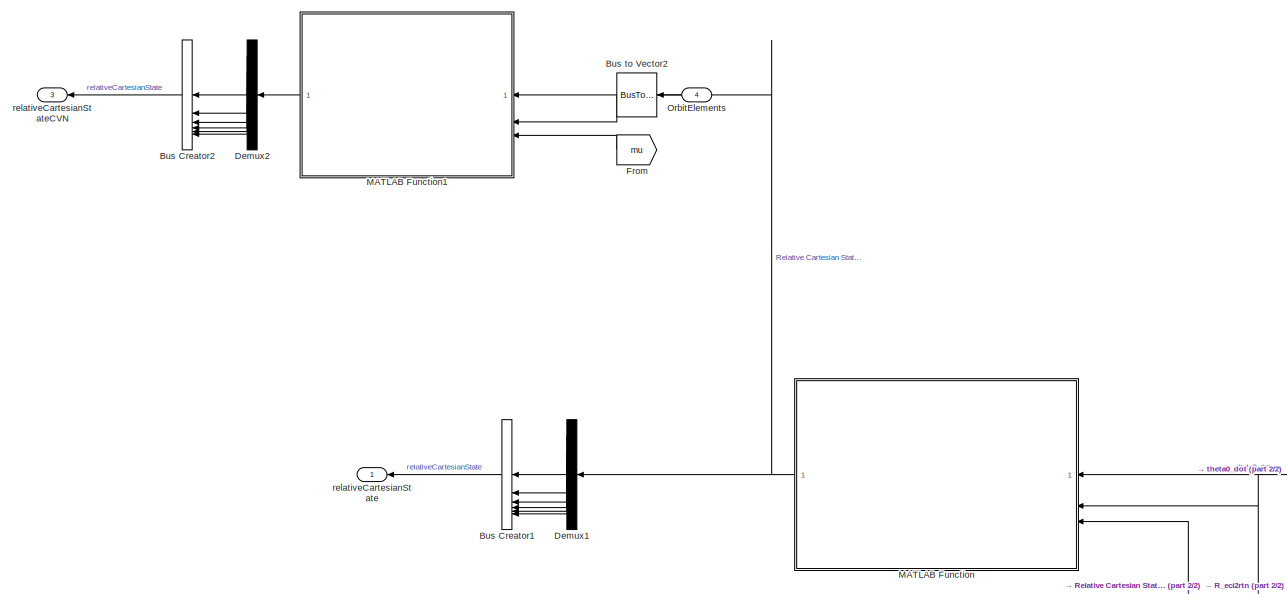
[diagram: root canvas - part 1/2, middle left region]
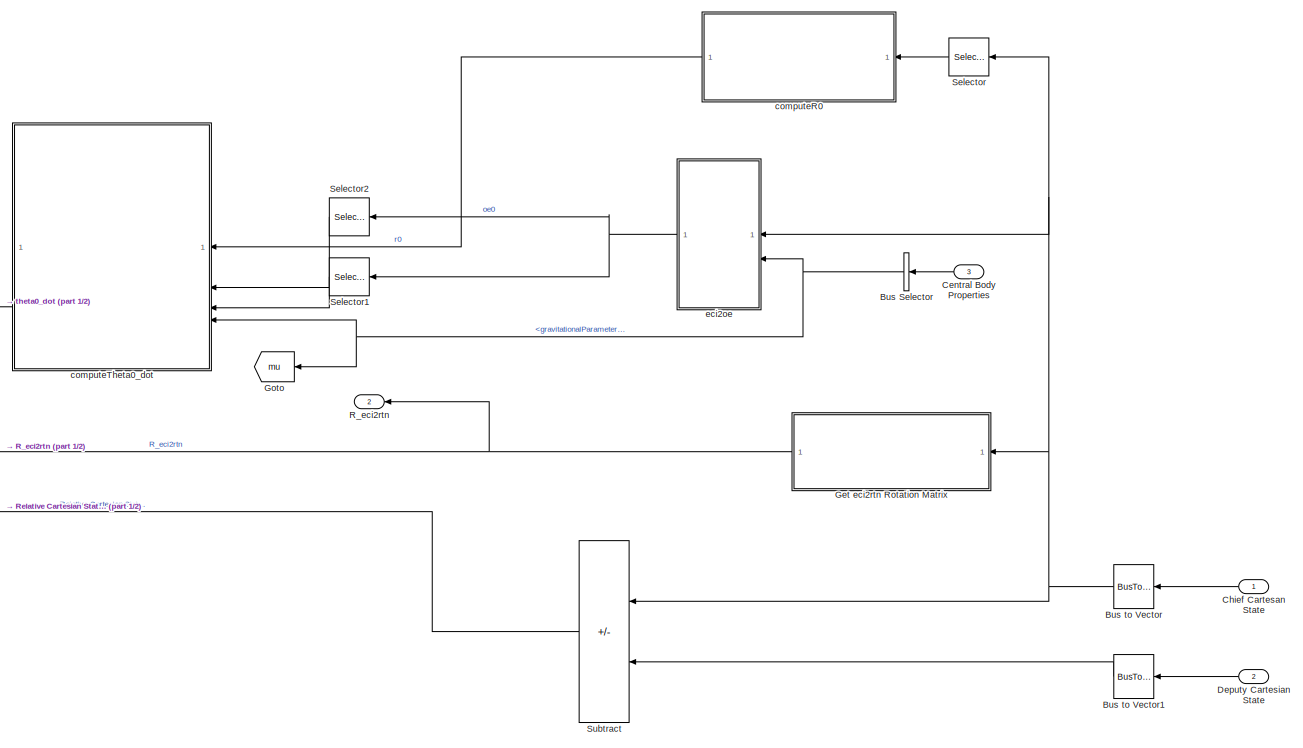
[diagram: root canvas - part 2/2, right side, full height]
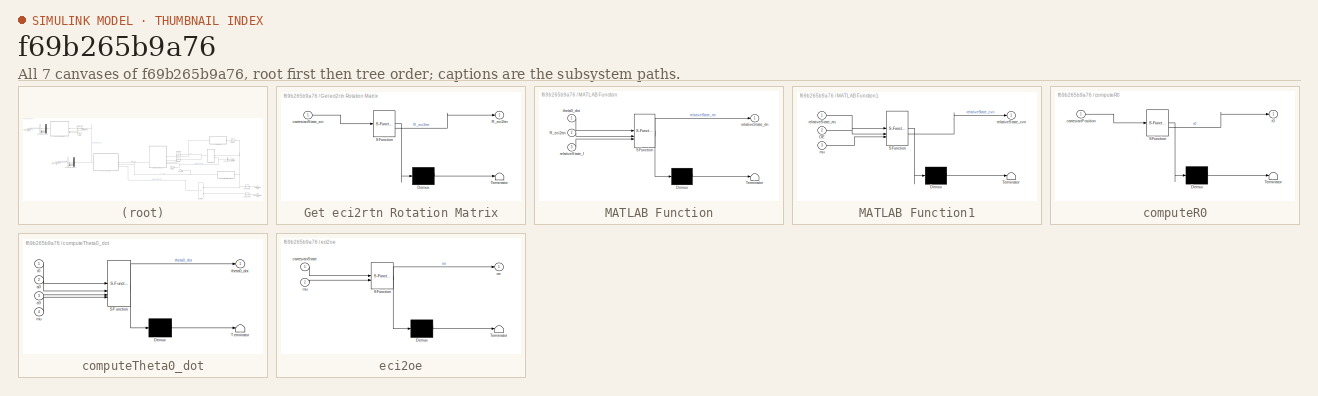
[diagram: thumbnail index - all 7 canvases of the model, root first then tree order]
MODEL slx_f69b265b9a76
KIND model
CONFIG AbsTol = auto
CONFIG EnableMultiTasking = off
CONFIG FixedStep = dt
CONFIG MaxStep = max_step_size
CONFIG MinStep = auto
CONFIG RelTol = relative_tolerance
CONFIG SampleTimeConstraint = Unconstrained
CONFIG SolverName = ode4
CONFIG StartTime = 0.0
CONFIG StopTime = 10.0
BLOCK [BusCreator] Bus Creator1
  DisplayOption = bar
  InheritFromInputs = off
  Inputs = 6
  NonVirtualBus = on
  OutDataTypeStr = Bus: relativeCartesianState
BLOCK [BusCreator] Bus Creator2
  DisplayOption = bar
  InheritFromInputs = off
  Inputs = 6
  NonVirtualBus = on
  OutDataTypeStr = Bus: relativeCartesianState
BLOCK [BusSelector] Bus Selector
  OutputSignals = gravitationalParameter_m3_s2
BLOCK [BusToVector] Bus to Vector
BLOCK [BusToVector] Bus to Vector1
BLOCK [BusToVector] Bus to Vector2
BLOCK [Inport] Central Body Properties
  OutDataTypeStr = Bus: planetProperties
  Port = 3
BLOCK [Inport] Chief Cartesan State
  OutDataTypeStr = Bus: cartesianState
BLOCK [Demux] Demux1
  Outputs = 6
BLOCK [Demux] Demux2
  Outputs = 6
BLOCK [Inport] Deputy Cartesian State
  OutDataTypeStr = Bus: cartesianState
  Port = 2
BLOCK [From] From
  GotoTag = mu
BLOCK [SubSystem] Get eci2rtn Rotation Matrix
  ErrorFcn = Stateflow.Translate.translate
  LibrarySourceBlock = simulink/User-Defined\nFunctions/MATLAB Function
  PermitHierarchicalResolution = ExplicitOnly
  SFBlockType = MATLAB Function
  TreatAsAtomicUnit = on
BLOCK [Demux] Get eci2rtn Rotation Matrix/ Demux 
  Outputs = 1
BLOCK [S-Function] Get eci2rtn Rotation Matrix/ SFunction 
  EnableBusSupport = on
  FunctionName = sf_sfun
  PortCounts = [1 2]
  SFcnIsStateOwnerBlock = off
  SFunctionDeploymentMode = off
  Tag = Stateflow S-Function 2
BLOCK [Terminator] Get eci2rtn Rotation Matrix/ Terminator 
BLOCK [Outport] Get eci2rtn Rotation Matrix/R_eci2rtn
BLOCK [Inport] Get eci2rtn Rotation Matrix/cartesianState_eci
BLOCK [Goto] Goto
  GotoTag = mu
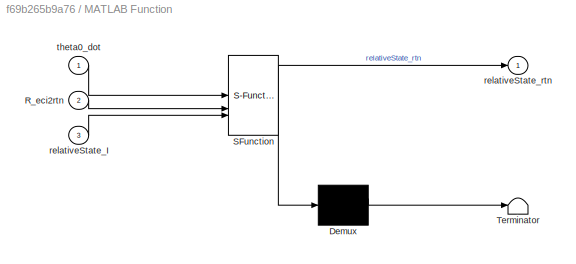
BLOCK [SubSystem] MATLAB Function
  ErrorFcn = Stateflow.Translate.translate
  LibrarySourceBlock = simulink/User-Defined\nFunctions/MATLAB Function
  PermitHierarchicalResolution = ExplicitOnly
  SFBlockType = MATLAB Function
  TreatAsAtomicUnit = on
BLOCK [Demux] MATLAB Function/ Demux 
  Outputs = 1
BLOCK [S-Function] MATLAB Function/ SFunction 
  EnableBusSupport = on
  FunctionName = sf_sfun
  PortCounts = [3 2]
  SFcnIsStateOwnerBlock = off
  SFunctionDeploymentMode = off
  Tag = Stateflow S-Function 6
BLOCK [Terminator] MATLAB Function/ Terminator 
BLOCK [Inport] MATLAB Function/R_eci2rtn
  Port = 2
BLOCK [Inport] MATLAB Function/relativeState_I
  Port = 3
BLOCK [Outport] MATLAB Function/relativeState_rtn
BLOCK [Inport] MATLAB Function/theta0_dot
BLOCK [SubSystem] MATLAB Function1
  ErrorFcn = Stateflow.Translate.translate
  LibrarySourceBlock = simulink/User-Defined\nFunctions/MATLAB Function
  PermitHierarchicalResolution = ExplicitOnly
  SFBlockType = MATLAB Function
  TreatAsAtomicUnit = on
BLOCK [Demux] MATLAB Function1/ Demux 
  Outputs = 1
BLOCK [S-Function] MATLAB Function1/ SFunction 
  EnableBusSupport = off
  FunctionName = sf_sfun
  PortCounts = [3 2]
  SFcnIsStateOwnerBlock = off
  SFunctionDeploymentMode = off
  Tag = Stateflow S-Function 1
BLOCK [Terminator] MATLAB Function1/ Terminator 
BLOCK [Inport] MATLAB Function1/OE
  Port = 2
BLOCK [Inport] MATLAB Function1/mu
  Port = 3
BLOCK [Outport] MATLAB Function1/relativeState_cvn
BLOCK [Inport] MATLAB Function1/relativeState_rtn
BLOCK [Inport] OrbitElements
  OutDataTypeStr = Bus: osculatingOrbitElements
  Port = 4
BLOCK [Outport] R_eci2rtn
  Port = 2
BLOCK [Selector] Selector
  IndexOptions = Index vector (dialog)
  Indices = 1:3
  InputPortWidth = 6
  OutputSizes = 1
BLOCK [Selector] Selector1
  IndexOptions = Index vector (dialog)
  Indices = 2
  InputPortWidth = 6
  OutputSizes = 1
BLOCK [Selector] Selector2
  IndexOptions = Index vector (dialog)
  Indices = 1
  InputPortWidth = 6
  OutputSizes = 1
BLOCK [Sum] Subtract
  IconShape = rectangular
  Inputs = -+
BLOCK [SubSystem] computeR0
  ErrorFcn = Stateflow.Translate.translate
  LibrarySourceBlock = simulink/User-Defined\nFunctions/MATLAB Function
  PermitHierarchicalResolution = ExplicitOnly
  SFBlockType = MATLAB Function
  TreatAsAtomicUnit = on
BLOCK [Demux] computeR0/ Demux 
  Outputs = 1
BLOCK [S-Function] computeR0/ SFunction 
  EnableBusSupport = on
  FunctionName = sf_sfun
  PortCounts = [1 2]
  SFcnIsStateOwnerBlock = off
  SFunctionDeploymentMode = off
  Tag = Stateflow S-Function 3
BLOCK [Terminator] computeR0/ Terminator 
BLOCK [Inport] computeR0/cartesianPosition
BLOCK [Outport] computeR0/r0
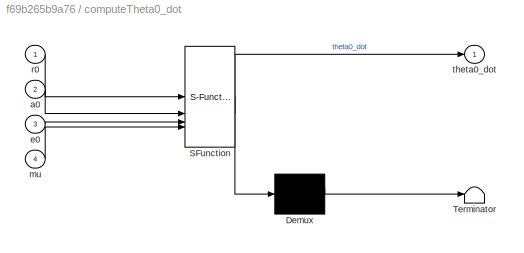
BLOCK [SubSystem] computeTheta0_dot
  ErrorFcn = Stateflow.Translate.translate
  LibrarySourceBlock = simulink/User-Defined\nFunctions/MATLAB Function
  PermitHierarchicalResolution = ExplicitOnly
  SFBlockType = MATLAB Function
  TreatAsAtomicUnit = on
BLOCK [Demux] computeTheta0_dot/ Demux 
  Outputs = 1
BLOCK [S-Function] computeTheta0_dot/ SFunction 
  EnableBusSupport = on
  FunctionName = sf_sfun
  PortCounts = [4 2]
  SFcnIsStateOwnerBlock = off
  SFunctionDeploymentMode = off
  Tag = Stateflow S-Function 5
BLOCK [Terminator] computeTheta0_dot/ Terminator 
BLOCK [Inport] computeTheta0_dot/a0
  Port = 2
BLOCK [Inport] computeTheta0_dot/e0
  Port = 3
BLOCK [Inport] computeTheta0_dot/mu
  Port = 4
BLOCK [Inport] computeTheta0_dot/r0
BLOCK [Outport] computeTheta0_dot/theta0_dot
BLOCK [SubSystem] eci2oe
  ErrorFcn = Stateflow.Translate.translate
  LibrarySourceBlock = simulink/User-Defined\nFunctions/MATLAB Function
  PermitHierarchicalResolution = ExplicitOnly
  SFBlockType = MATLAB Function
  TreatAsAtomicUnit = on
BLOCK [Demux] eci2oe/ Demux 
  Outputs = 1
BLOCK [S-Function] eci2oe/ SFunction 
  EnableBusSupport = on
  FunctionName = sf_sfun
  PortCounts = [2 2]
  SFcnIsStateOwnerBlock = off
  SFunctionDeploymentMode = off
  Tag = Stateflow S-Function 4
BLOCK [Terminator] eci2oe/ Terminator 
BLOCK [Inport] eci2oe/cartesianState
BLOCK [Inport] eci2oe/mu
  Port = 2
BLOCK [Outport] eci2oe/oe
BLOCK [Outport] relativeCartesianState
  OutDataTypeStr = Bus: relativeCartesianState
BLOCK [Outport] relativeCartesianStateCVN
  OutDataTypeStr = Bus: relativeCartesianState
  Port = 3
LINE Bus Creator1:1 -> relativeCartesianState:1
LINE Bus Creator2:1 -> relativeCartesianStateCVN:1
NET Bus Selector:1 -> Goto:1, computeTheta0_dot:4, eci2oe:2
LINE Bus to Vector1:1 -> Subtract:2
LINE Bus to Vector2:1 -> MATLAB Function1:2
NET Bus to Vector:1 -> Get eci2rtn Rotation Matrix:1, Selector:1, Subtract:1, eci2oe:1
LINE Central Body Properties:1 -> Bus Selector:1
LINE Chief Cartesan State:1 -> Bus to Vector:1
LINE Demux1:1 -> Bus Creator1:1
LINE Demux1:2 -> Bus Creator1:2
LINE Demux1:3 -> Bus Creator1:3
LINE Demux1:4 -> Bus Creator1:4
LINE Demux1:5 -> Bus Creator1:5
LINE Demux1:6 -> Bus Creator1:6
LINE Demux2:1 -> Bus Creator2:1
LINE Demux2:2 -> Bus Creator2:2
LINE Demux2:3 -> Bus Creator2:3
LINE Demux2:4 -> Bus Creator2:4
LINE Demux2:5 -> Bus Creator2:5
LINE Demux2:6 -> Bus Creator2:6
LINE Deputy Cartesian State:1 -> Bus to Vector1:1
LINE From:1 -> MATLAB Function1:3
NET Get eci2rtn Rotation Matrix:1 -> MATLAB Function:2, R_eci2rtn:1
LINE MATLAB Function1:1 -> Demux2:1
NET MATLAB Function:1 -> Demux1:1, MATLAB Function1:1
LINE OrbitElements:1 -> Bus to Vector2:1
LINE Selector1:1 -> computeTheta0_dot:3
LINE Selector2:1 -> computeTheta0_dot:2
LINE Selector:1 -> computeR0:1
LINE Subtract:1 -> MATLAB Function:3
LINE computeR0:1 -> computeTheta0_dot:1
LINE computeTheta0_dot:1 -> MATLAB Function:1
NET eci2oe:1 -> Selector1:1, Selector2:1
note: NET lines group one-source signal fan-out (src -> all destinations, sorted); 1:1 wires keep LINE
CHART MATLAB Function1 states=1 transitions=1
  STATE_LABEL 'eML_blk_kernel()'
  STATE_LABEL 'SCRIPT:\nfunction relativeState_cvn = rtn2cvn(relativeState_rtn, OE, mu)\nrelativeState_cvn = rtn2cvn(relativeState_rtn, OE, mu);\nend\n'
CHART Get eci2rtn Rotation Matrix states=1 transitions=1
  STATE_LABEL 'eML_blk_kernel()'
  STATE_LABEL 'SCRIPT:\nfunction R_eci2rtn  = eci2rtn(cartesianState_eci)\n\n[~, R_eci2rtn] = eci2rtn(cartesianState_eci);\n\nend\n'
CHART computeR0 states=1 transitions=1
  STATE_LABEL 'eML_blk_kernel()'
  STATE_LABEL 'SCRIPT:\nfunction r0  = computeR0(cartesianPosition)\nr0 = computeR0(cartesianPosition);\nend\n'
CHART eci2oe states=1 transitions=1
  STATE_LABEL 'eML_blk_kernel()'
  STATE_LABEL 'SCRIPT:\nfunction oe = eci2oe(cartesianState,mu)\n[oe,~,~,~] = eci2oe( cartesianState , mu );\nend\n'
CHART computeTheta0_dot states=1 transitions=1
  STATE_LABEL 'eML_blk_kernel()'
  STATE_LABEL 'SCRIPT:\nfunction theta0_dot = computeTheta0_dot(r0,a0,e0,mu)\ntheta0_dot = computeTheta0_dot(r0,mu,a0,e0);\nend'
CHART MATLAB Function states=1 transitions=1
  STATE_LABEL 'eML_blk_kernel()'
  STATE_LABEL 'SCRIPT:\nfunction relativeState_rtn  = vI2vRTN(theta0_dot, R_eci2rtn,relativeState_I)\nrelativeState_rtn = vI2vRTN(relativeState_I, theta0_dot, R_eci2rtn);\n\nend\n'
CHART  states=0 transitions=0
CHART  states=0 transitions=0
CHART  states=0 transitions=0
CHART  states=0 transitions=0
CHART  states=0 transitions=0
CHART  states=0 transitions=0
